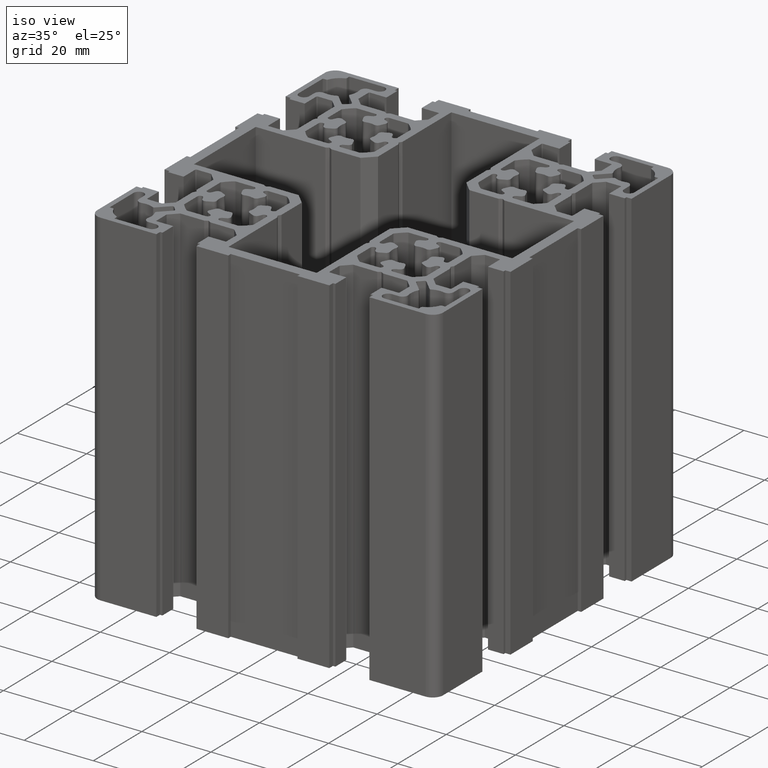
[diagram: clean part render]
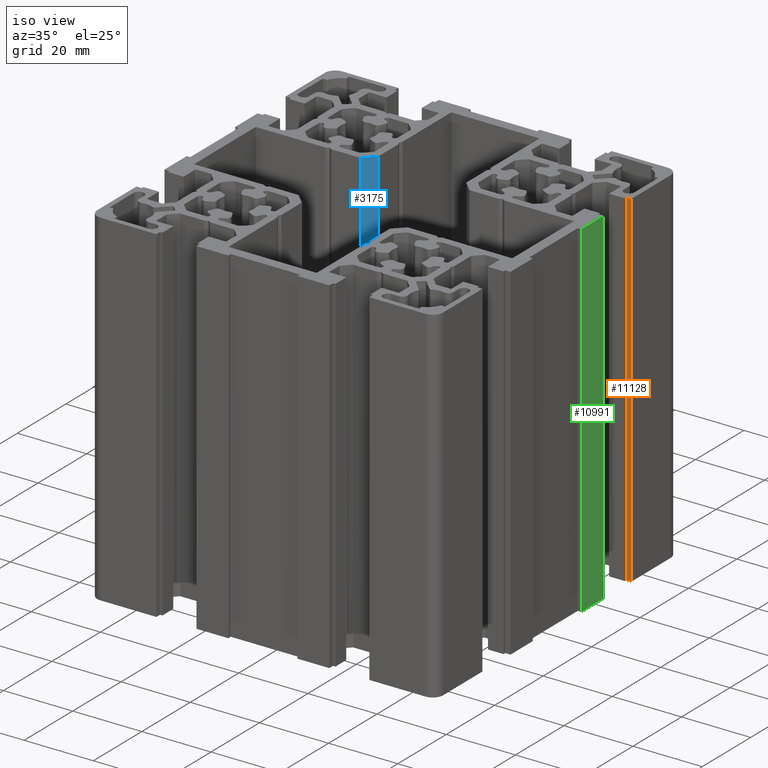
[diagram: same view with three faces highlighted in distinct colors, each labeled with its STEP entity id]
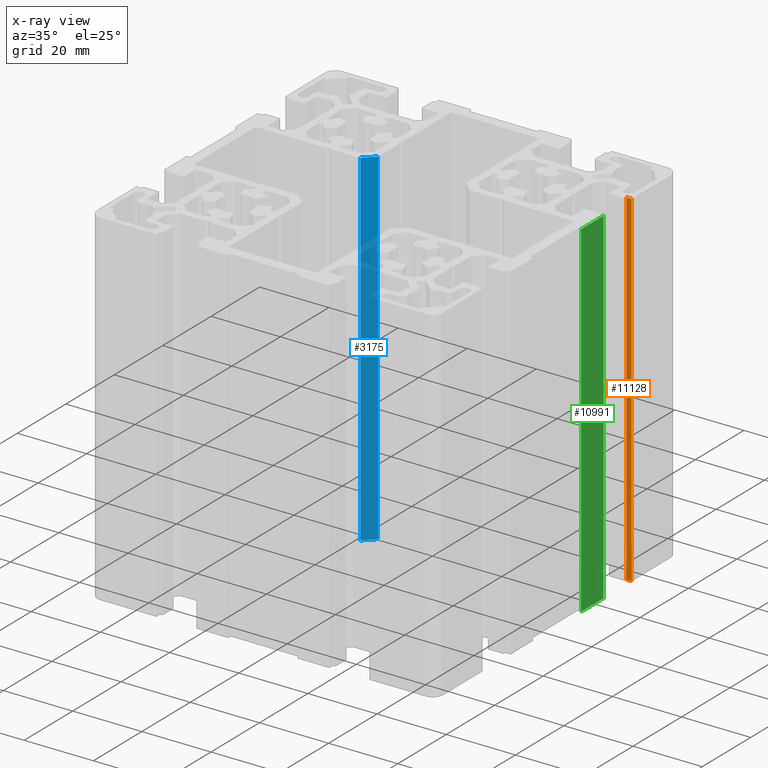
[diagram: x-ray of the same camera — body ghosted, the three highlighted faces saturated]
A machine part, iso view with three faces highlighted in distinct colors.
The next image is the same camera in x-ray (body ghosted, the three faces saturated) — at least one of them is partly hidden behind the body in this view.
Their STEP definitions:

[orange] entity #11128 — the highlighted planar face has unit normal (0, 1, -0).
#8755 = VERTEX_POINT ( 'NONE', #15049 ) ;
#8766 = EDGE_CURVE ( 'NONE', #8768, #8755, #15128, .T. ) ;
#8768 = VERTEX_POINT ( 'NONE', #15081 ) ;
#9310 = VERTEX_POINT ( 'NONE', #16078 ) ;
#9362 = EDGE_CURVE ( 'NONE', #9363, #9310, #16116, .T. ) ;
#9363 = VERTEX_POINT ( 'NONE', #16118 ) ;
#11068 = ORIENTED_EDGE ( 'NONE', *, *, #9362, .T. ) ;
#11101 = ORIENTED_EDGE ( 'NONE', *, *, #11119, .T. ) ;
#11102 = ORIENTED_EDGE ( 'NONE', *, *, #8766, .F. ) ;
#11119 = EDGE_CURVE ( 'NONE', #8768, #9363, #18923, .T. ) ;
#11122 = ORIENTED_EDGE ( 'NONE', *, *, #11129, .F. ) ;
#11123 = EDGE_LOOP ( 'NONE', ( #11068, #11122, #11102, #11101 ) ) ;
#11128 = ADVANCED_FACE ( 'NONE', ( #18910 ), #18952, .F. ) ;
#11129 = EDGE_CURVE ( 'NONE', #8755, #9310, #18946, .T. ) ;
#15049 = CARTESIAN_POINT ( 'NONE',  ( 50.00000000000000000, 30.79999923706078800, 100.0000000000000000 ) ) ;
#15081 = CARTESIAN_POINT ( 'NONE',  ( 48.49999999999997200, 30.79999923706083100, 100.0000000000000000 ) ) ;
#15125 = DIRECTION ( 'NONE',  ( 1.000000000000000000, -2.775557561562837700E-014, 0.0000000000000000000 ) ) ;
#15126 = VECTOR ( 'NONE', #15125, 1000.000000000000000 ) ;
#15127 = CARTESIAN_POINT ( 'NONE',  ( 48.49999999999997200, 30.79999923706083100, 100.0000000000000000 ) ) ;
#15128 = LINE ( 'NONE', #15127, #15126 ) ;
#16078 = CARTESIAN_POINT ( 'NONE',  ( 50.00000000000000000, 30.79999923706078800, 0.0000000000000000000 ) ) ;
#16113 = DIRECTION ( 'NONE',  ( 1.000000000000000000, -2.775557561562837700E-014, 0.0000000000000000000 ) ) ;
#16114 = VECTOR ( 'NONE', #16113, 1000.000000000000000 ) ;
#16115 = CARTESIAN_POINT ( 'NONE',  ( 48.49999999999997200, 30.79999923706083100, 0.0000000000000000000 ) ) ;
#16116 = LINE ( 'NONE', #16115, #16114 ) ;
#16118 = CARTESIAN_POINT ( 'NONE',  ( 48.49999999999997200, 30.79999923706083100, 0.0000000000000000000 ) ) ;
#18910 = FACE_OUTER_BOUND ( 'NONE', #11123, .T. ) ;
#18923 = LINE ( 'NONE', #18960, #18959 ) ;
#18943 = DIRECTION ( 'NONE',  ( -0.0000000000000000000, -0.0000000000000000000, -1.000000000000000000 ) ) ;
#18944 = VECTOR ( 'NONE', #18943, 1000.000000000000000 ) ;
#18945 = CARTESIAN_POINT ( 'NONE',  ( 50.00000000000000000, 30.79999923706078800, 100.0000000000000000 ) ) ;
#18946 = LINE ( 'NONE', #18945, #18944 ) ;
#18948 = DIRECTION ( 'NONE',  ( -1.000000000000000000, 2.775557561562837700E-014, 0.0000000000000000000 ) ) ;
#18949 = DIRECTION ( 'NONE',  ( 2.775557561562837700E-014, 1.000000000000000000, -0.0000000000000000000 ) ) ;
#18950 = CARTESIAN_POINT ( 'NONE',  ( 48.49999999999997200, 30.79999923706083100, 100.0000000000000000 ) ) ;
#18951 = AXIS2_PLACEMENT_3D ( 'NONE', #18950, #18949, #18948 ) ;
#18952 = PLANE ( 'NONE',  #18951 ) ;
#18958 = DIRECTION ( 'NONE',  ( -0.0000000000000000000, -0.0000000000000000000, -1.000000000000000000 ) ) ;
#18959 = VECTOR ( 'NONE', #18958, 1000.000000000000000 ) ;
#18960 = CARTESIAN_POINT ( 'NONE',  ( 48.49999999999997200, 30.79999923706083100, 100.0000000000000000 ) ) ;

[blue] entity #3175 — the highlighted planar face has unit normal (0.7071, -0.7071, 0).
#3172 = EDGE_CURVE ( 'NONE', #8676, #10065, #12735, .T. ) ;
#3173 = EDGE_LOOP ( 'NONE', ( #3177, #3178, #3180, #3174 ) ) ;
#3174 = ORIENTED_EDGE ( 'NONE', *, *, #3179, .T. ) ;
#3175 = ADVANCED_FACE ( 'NONE', ( #12730 ), #12692, .T. ) ;
#3177 = ORIENTED_EDGE ( 'NONE', *, *, #10125, .F. ) ;
#3178 = ORIENTED_EDGE ( 'NONE', *, *, #3172, .F. ) ;
#3179 = EDGE_CURVE ( 'NONE', #8663, #10120, #12721, .T. ) ;
#3180 = ORIENTED_EDGE ( 'NONE', *, *, #8689, .T. ) ;
#8663 = VERTEX_POINT ( 'NONE', #14914 ) ;
#8676 = VERTEX_POINT ( 'NONE', #14953 ) ;
#8689 = EDGE_CURVE ( 'NONE', #8676, #8663, #14980, .T. ) ;
#10065 = VERTEX_POINT ( 'NONE', #17357 ) ;
#10120 = VERTEX_POINT ( 'NONE', #17448 ) ;
#10125 = EDGE_CURVE ( 'NONE', #10065, #10120, #17438, .T. ) ;
#12692 = PLANE ( 'NONE',  #12729 ) ;
#12718 = DIRECTION ( 'NONE',  ( -0.0000000000000000000, -0.0000000000000000000, -1.000000000000000000 ) ) ;
#12719 = VECTOR ( 'NONE', #12718, 1000.000000000000000 ) ;
#12720 = CARTESIAN_POINT ( 'NONE',  ( -15.74999999999990900, 12.75000000000028100, 100.0000000000000000 ) ) ;
#12721 = LINE ( 'NONE', #12720, #12719 ) ;
#12724 = DIRECTION ( 'NONE',  ( 0.7071067811865435800, 0.7071067811865513500, 0.0000000000000000000 ) ) ;
#12725 = DIRECTION ( 'NONE',  ( 0.7071067811865514600, -0.7071067811865436900, 0.0000000000000000000 ) ) ;
#12726 = CARTESIAN_POINT ( 'NONE',  ( -15.74999999999990900, 12.75000000000028100, 100.0000000000000000 ) ) ;
#12728 = DIRECTION ( 'NONE',  ( -0.0000000000000000000, -0.0000000000000000000, -1.000000000000000000 ) ) ;
#12729 = AXIS2_PLACEMENT_3D ( 'NONE', #12726, #12725, #12724 ) ;
#12730 = FACE_OUTER_BOUND ( 'NONE', #3173, .T. ) ;
#12733 = CARTESIAN_POINT ( 'NONE',  ( -12.75000000000000200, 15.75000000000022200, 100.0000000000000000 ) ) ;
#12734 = VECTOR ( 'NONE', #12728, 1000.000000000000000 ) ;
#12735 = LINE ( 'NONE', #12733, #12734 ) ;
#14914 = CARTESIAN_POINT ( 'NONE',  ( -15.74999999999990900, 12.75000000000028200, 100.0000000000000000 ) ) ;
#14953 = CARTESIAN_POINT ( 'NONE',  ( -12.75000000000000200, 15.75000000000022200, 100.0000000000000000 ) ) ;
#14974 = DIRECTION ( 'NONE',  ( -0.7071067811865435800, -0.7071067811865513500, -0.0000000000000000000 ) ) ;
#14975 = VECTOR ( 'NONE', #14974, 1000.000000000000100 ) ;
#14976 = CARTESIAN_POINT ( 'NONE',  ( -15.74999999999990900, 12.75000000000028100, 100.0000000000000000 ) ) ;
#14980 = LINE ( 'NONE', #14976, #14975 ) ;
#17357 = CARTESIAN_POINT ( 'NONE',  ( -12.75000000000000200, 15.75000000000022200, 0.0000000000000000000 ) ) ;
#17438 = LINE ( 'NONE', #17453, #17452 ) ;
#17448 = CARTESIAN_POINT ( 'NONE',  ( -15.74999999999990900, 12.75000000000028100, 0.0000000000000000000 ) ) ;
#17452 = VECTOR ( 'NONE', #17493, 1000.000000000000100 ) ;
#17453 = CARTESIAN_POINT ( 'NONE',  ( -15.74999999999990900, 12.75000000000028100, 0.0000000000000000000 ) ) ;
#17493 = DIRECTION ( 'NONE',  ( -0.7071067811865435800, -0.7071067811865513500, -0.0000000000000000000 ) ) ;

[green] entity #10991 — the highlighted planar face has unit normal (-1, 0, 0).
#432 = EDGE_CURVE ( 'NONE', #453, #484, #4537, .T. ) ;
#453 = VERTEX_POINT ( 'NONE', #4543 ) ;
#484 = VERTEX_POINT ( 'NONE', #4626 ) ;
#4524 = DIRECTION ( 'NONE',  ( 9.804957964152680800E-015, 1.000000000000000000, 0.0000000000000000000 ) ) ;
#4525 = VECTOR ( 'NONE', #4524, 1000.000000000000000 ) ;
#4526 = CARTESIAN_POINT ( 'NONE',  ( 49.99999999999985800, 9.999999999999991100, 100.0000000000000000 ) ) ;
#4537 = LINE ( 'NONE', #4526, #4525 ) ;
#4543 = CARTESIAN_POINT ( 'NONE',  ( 49.99999999999985800, 9.999999999999991100, 100.0000000000000000 ) ) ;
#4626 = CARTESIAN_POINT ( 'NONE',  ( 49.99999999999995000, 19.20000076293945000, 100.0000000000000000 ) ) ;
#9326 = VERTEX_POINT ( 'NONE', #16059 ) ;
#9333 = VERTEX_POINT ( 'NONE', #16071 ) ;
#9393 = EDGE_CURVE ( 'NONE', #9333, #9326, #16187, .T. ) ;
#10923 = ORIENTED_EDGE ( 'NONE', *, *, #432, .F. ) ;
#10925 = ORIENTED_EDGE ( 'NONE', *, *, #10936, .T. ) ;
#10936 = EDGE_CURVE ( 'NONE', #453, #9333, #18668, .T. ) ;
#10943 = EDGE_LOOP ( 'NONE', ( #10992, #10990, #10923, #10925 ) ) ;
#10989 = EDGE_CURVE ( 'NONE', #484, #9326, #18725, .T. ) ;
#10990 = ORIENTED_EDGE ( 'NONE', *, *, #10989, .F. ) ;
#10991 = ADVANCED_FACE ( 'NONE', ( #18716 ), #18715, .F. ) ;
#10992 = ORIENTED_EDGE ( 'NONE', *, *, #9393, .T. ) ;
#16059 = CARTESIAN_POINT ( 'NONE',  ( 49.99999999999995000, 19.20000076293945000, 0.0000000000000000000 ) ) ;
#16071 = CARTESIAN_POINT ( 'NONE',  ( 49.99999999999985800, 9.999999999999991100, 0.0000000000000000000 ) ) ;
#16180 = DIRECTION ( 'NONE',  ( 9.804957964152680800E-015, 1.000000000000000000, 0.0000000000000000000 ) ) ;
#16181 = VECTOR ( 'NONE', #16180, 1000.000000000000000 ) ;
#16182 = CARTESIAN_POINT ( 'NONE',  ( 49.99999999999985800, 9.999999999999991100, 0.0000000000000000000 ) ) ;
#16187 = LINE ( 'NONE', #16182, #16181 ) ;
#18665 = DIRECTION ( 'NONE',  ( -0.0000000000000000000, -0.0000000000000000000, -1.000000000000000000 ) ) ;
#18666 = VECTOR ( 'NONE', #18665, 1000.000000000000000 ) ;
#18667 = CARTESIAN_POINT ( 'NONE',  ( 49.99999999999985800, 9.999999999999991100, 100.0000000000000000 ) ) ;
#18668 = LINE ( 'NONE', #18667, #18666 ) ;
#18683 = AXIS2_PLACEMENT_3D ( 'NONE', #18765, #18764, #18763 ) ;
#18715 = PLANE ( 'NONE',  #18683 ) ;
#18716 = FACE_OUTER_BOUND ( 'NONE', #10943, .T. ) ;
#18725 = LINE ( 'NONE', #18768, #18767 ) ;
#18763 = DIRECTION ( 'NONE',  ( -9.804957964152680800E-015, -1.000000000000000000, 0.0000000000000000000 ) ) ;
#18764 = DIRECTION ( 'NONE',  ( -1.000000000000000000, 9.804957964152680800E-015, 0.0000000000000000000 ) ) ;
#18765 = CARTESIAN_POINT ( 'NONE',  ( 49.99999999999985800, 9.999999999999991100, 100.0000000000000000 ) ) ;
#18766 = DIRECTION ( 'NONE',  ( -0.0000000000000000000, -0.0000000000000000000, -1.000000000000000000 ) ) ;
#18767 = VECTOR ( 'NONE', #18766, 1000.000000000000000 ) ;
#18768 = CARTESIAN_POINT ( 'NONE',  ( 49.99999999999995000, 19.20000076293945000, 100.0000000000000000 ) ) ;